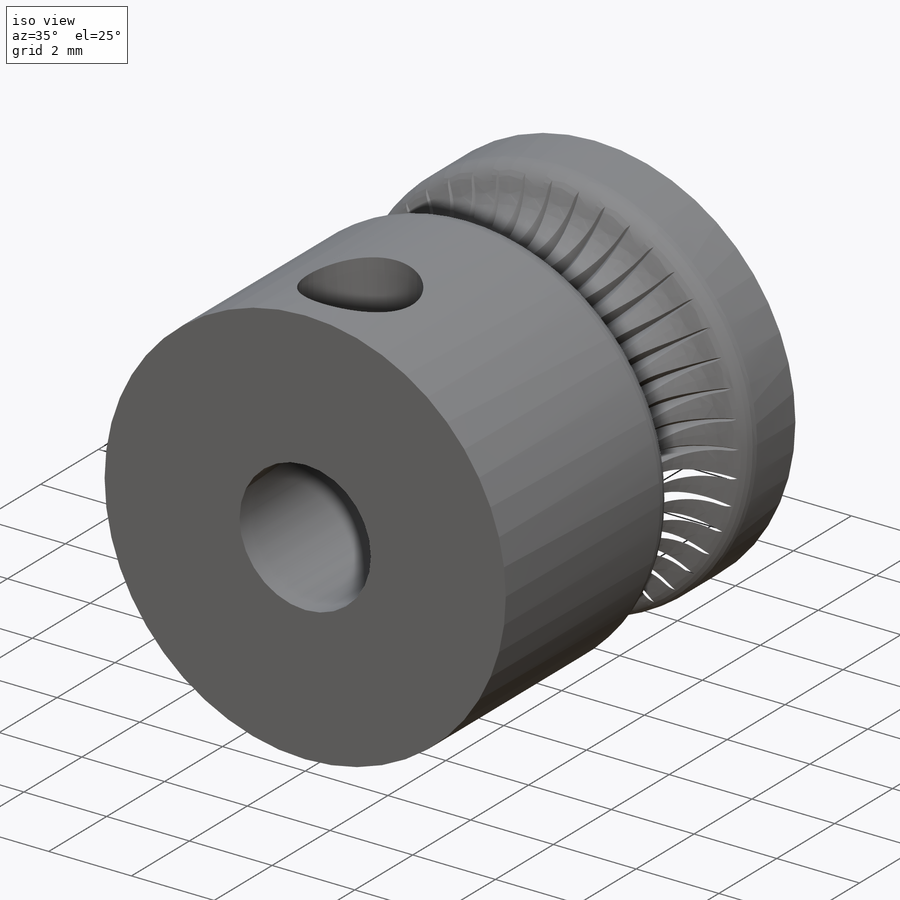
[diagram: iso view]
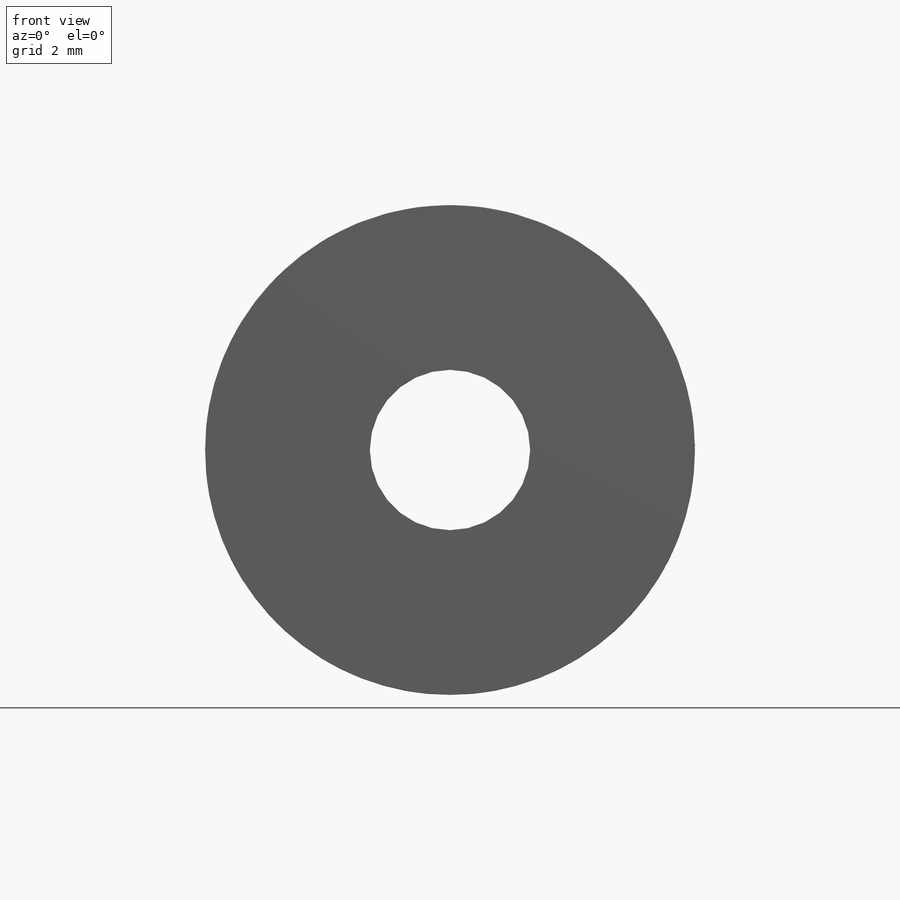
[diagram: front view]
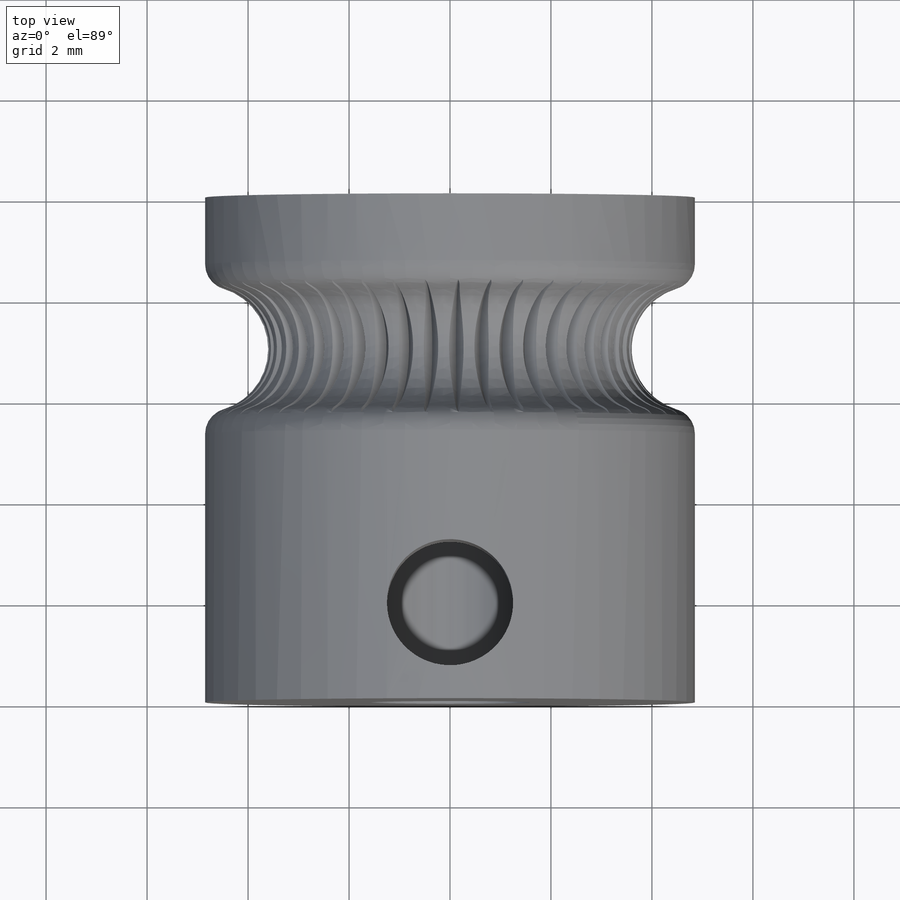
[diagram: top view]
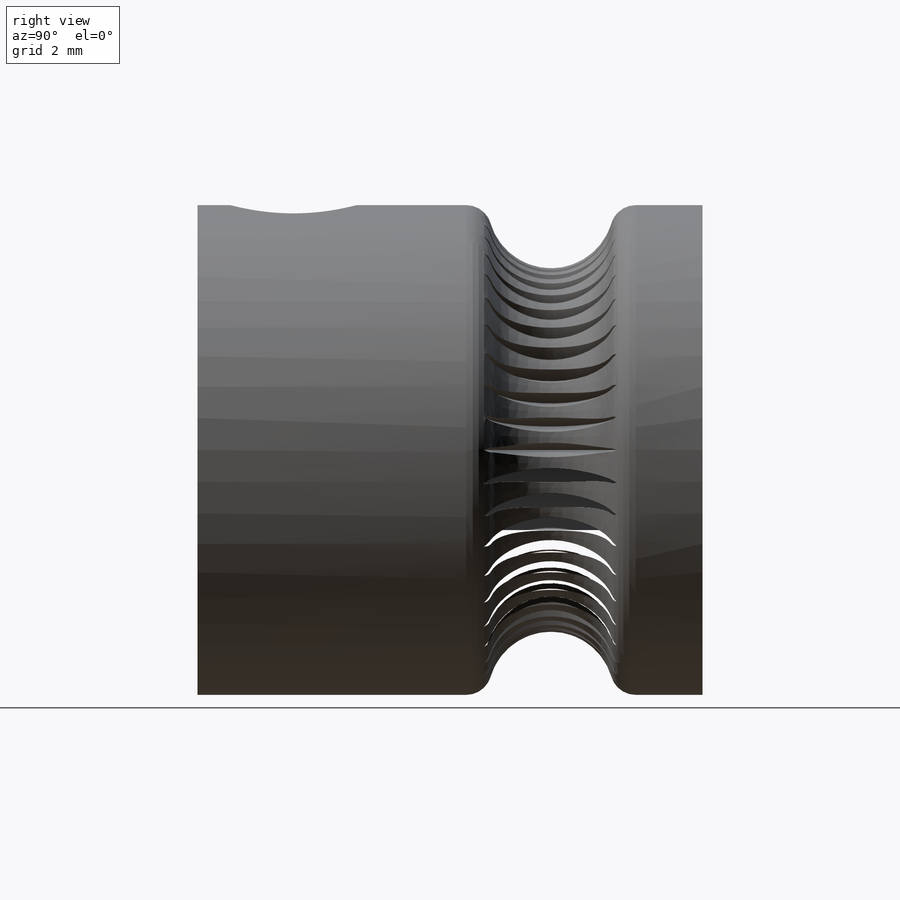
[diagram: right view]
SOLIDWORKS PART (.sldprt)
format: sldprt  version: not decoded by parser v0  size: 1,024,000 bytes
history: native  units: mm
features: sketch x7, cut_extrude x2, sweep x2, material x1, extrude x1, thread x1, plane x1, fillet x1, pattern_circular x1 (+16 scaffold rows collapsed)
feature tree (33):
  scaffold x16  (default folders/planes/origin — collapsed)
  material  "Stainless Steel (ferritic)"
  sketch  "Sketch1"  dims[D1=~24.09158mm]
  extrude  "Extrude1"  Depth=10mm
  sketch  "Sketch2"  dims[D1=3.175mm]
  cut_extrude  "Extrude2"  Depth=15.6mm
  sketch  "Sketch3"  dims[D1=3.5mm]
  cut_extrude  "Extrude3"  [1 undecoded]
  thread  "Cosmetic Thread1"  Diameter=3mm  [1 undecoded]
  plane  "Plane1"  Offset=7mm
  sketch  "Sketch4"
  sketch  "Sketch5"  dims[D1=~0.779023mm]
  sweep  "Cut-Sweep1"
  sketch  "Sketch7"
  sketch  "Sketch8"  dims[D1=0.25mm]
  sweep  "Cut-Sweep2"
  fillet  "Fillet1"  Radius=0.5mm
  pattern_circular  "CirPattern2"  Count=45 Angle=8deg
decode coverage: 10 of 15 modeling features carry decoded parameters
note: ~ marks probable driven/reference dimensions
note: 2 parameter values undecoded
note: suppression state not decoded; provenance and decode notes live in map.json
